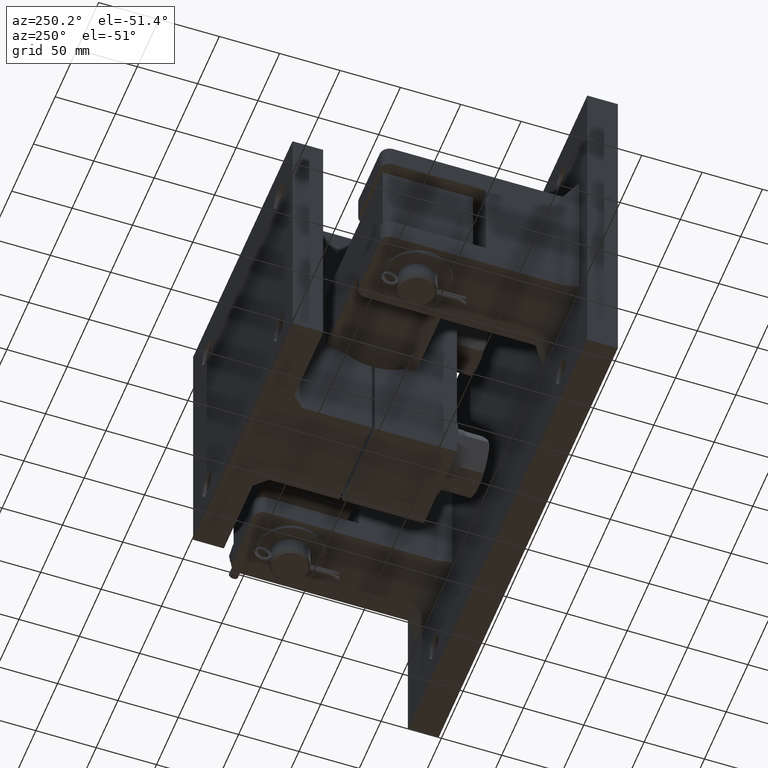
[diagram: clean part render]
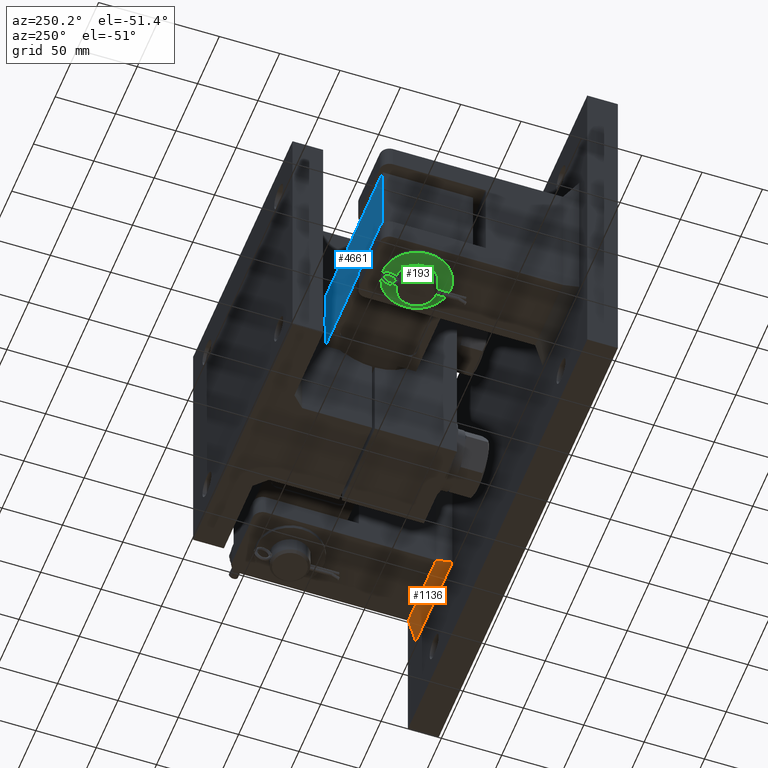
[diagram: same view with three faces highlighted in distinct colors, each labeled with its STEP entity id]
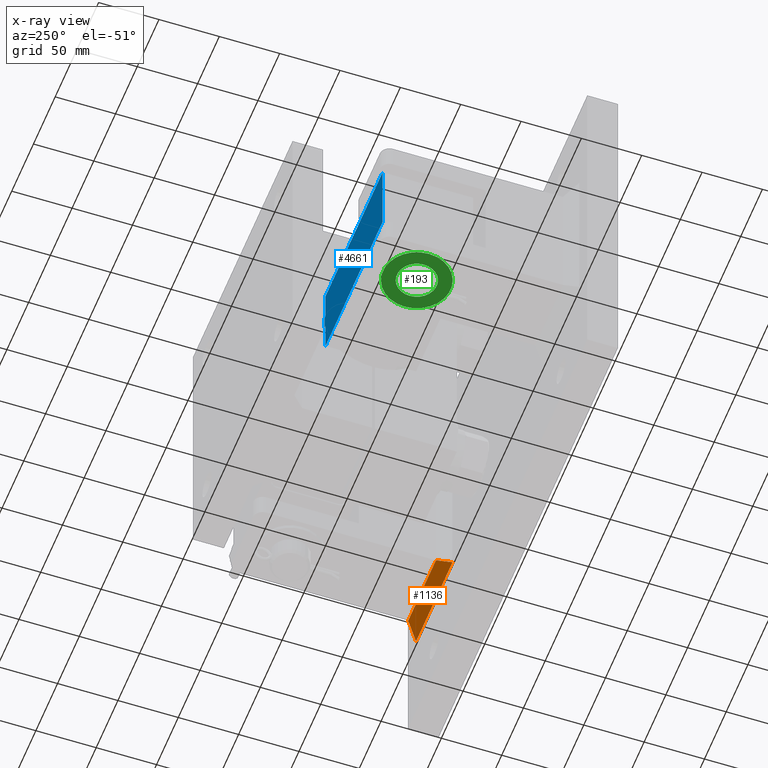
[diagram: x-ray of the same camera — body ghosted, the three highlighted faces saturated]
A machine part, auxiliary view with three faces highlighted in distinct colors.
The next image is the same camera in x-ray (body ghosted, the three faces saturated) — at least one of them is partly hidden behind the body in this view.
Their STEP definitions:

[orange] entity #1136 — the highlighted planar face has unit normal (-0, -0.7071, 0.7071).
#586 = VECTOR ( 'NONE', #9690, 1000.000000000000114 ) ;
#943 = DIRECTION ( 'NONE',  ( -1.000000000000000000, 0.000000000000000000, 0.000000000000000000 ) ) ;
#962 = DIRECTION ( 'NONE',  ( 1.000000000000000000, -0.000000000000000000, 0.000000000000000000 ) ) ;
#1023 = FACE_OUTER_BOUND ( 'NONE', #6649, .T. ) ;
#1136 = ADVANCED_FACE ( 'NONE', ( #1023 ), #4492, .F. ) ;
#1149 = VECTOR ( 'NONE', #943, 1000.000000000000000 ) ;
#1291 = ORIENTED_EDGE ( 'NONE', *, *, #8387, .T. ) ;
#1780 = LINE ( 'NONE', #8620, #1149 ) ;
#1800 = VERTEX_POINT ( 'NONE', #7206 ) ;
#2454 = CARTESIAN_POINT ( 'NONE',  ( 176.4666666666660717, 97.86666666666687320, 7.466666666666093910 ) ) ;
#2718 = CARTESIAN_POINT ( 'NONE',  ( 103.9999999999999432, 25.39999999999999858, -65.00000000000000000 ) ) ;
#2730 = CARTESIAN_POINT ( 'NONE',  ( 141.3333333333335986, 72.06666666666689025, -18.33333333333360926 ) ) ;
#3707 = VERTEX_POINT ( 'NONE', #3811 ) ;
#3811 = CARTESIAN_POINT ( 'NONE',  ( 113.9999999999999432, 35.40000000000011227, -55.00000000000000000 ) ) ;
#4492 = PLANE ( 'NONE',  #4712 ) ;
#4527 = VECTOR ( 'NONE', #5815, 1000.000000000000114 ) ;
#4712 = AXIS2_PLACEMENT_3D ( 'NONE', #8636, #6171, #962 ) ;
#4718 = ORIENTED_EDGE ( 'NONE', *, *, #7095, .F. ) ;
#5196 = EDGE_CURVE ( 'NONE', #1800, #3707, #1780, .T. ) ;
#5379 = VERTEX_POINT ( 'NONE', #8955 ) ;
#5703 = VERTEX_POINT ( 'NONE', #2718 ) ;
#5815 = DIRECTION ( 'NONE',  ( 0.5773502691896239547, 0.5773502691896299499, 0.5773502691896235106 ) ) ;
#6171 = DIRECTION ( 'NONE',  ( -0.000000000000000000, -0.7071067811865435759, 0.7071067811865514585 ) ) ;
#6255 = LINE ( 'NONE', #2730, #586 ) ;
#6649 = EDGE_LOOP ( 'NONE', ( #6974, #10601, #1291, #4718 ) ) ;
#6974 = ORIENTED_EDGE ( 'NONE', *, *, #10346, .T. ) ;
#7095 = EDGE_CURVE ( 'NONE', #5703, #5379, #8026, .T. ) ;
#7206 = CARTESIAN_POINT ( 'NONE',  ( 178.0000000000000000, 35.40000000000011937, -55.00000000000000000 ) ) ;
#8026 = LINE ( 'NONE', #9829, #10723 ) ;
#8387 = EDGE_CURVE ( 'NONE', #1800, #5379, #6255, .T. ) ;
#8620 = CARTESIAN_POINT ( 'NONE',  ( 0.000000000000000000, 35.40000000000011227, -55.00000000000000000 ) ) ;
#8636 = CARTESIAN_POINT ( 'NONE',  ( 0.000000000000000000, 25.39999999999999858, -65.00000000000000000 ) ) ;
#8955 = CARTESIAN_POINT ( 'NONE',  ( 188.0000000000000000, 25.39999999999999858, -65.00000000000000000 ) ) ;
#9410 = LINE ( 'NONE', #2454, #4527 ) ;
#9690 = DIRECTION ( 'NONE',  ( 0.5773502691896239547, -0.5773502691896299499, -0.5773502691896235106 ) ) ;
#9829 = CARTESIAN_POINT ( 'NONE',  ( 0.000000000000000000, 25.39999999999999858, -65.00000000000000000 ) ) ;
#10346 = EDGE_CURVE ( 'NONE', #5703, #3707, #9410, .T. ) ;
#10601 = ORIENTED_EDGE ( 'NONE', *, *, #5196, .F. ) ;
#10610 = DIRECTION ( 'NONE',  ( 1.000000000000000000, 0.000000000000000000, 0.000000000000000000 ) ) ;
#10723 = VECTOR ( 'NONE', #10610, 1000.000000000000000 ) ;

[blue] entity #4661 — the highlighted planar face has unit normal (0, -1, 0).
#51 = DIRECTION ( 'NONE',  ( -0.000000000000000000, -0.000000000000000000, -1.000000000000000000 ) ) ;
#357 = DIRECTION ( 'NONE',  ( -1.000000000000000000, -0.000000000000000000, -0.000000000000000000 ) ) ;
#397 = DIRECTION ( 'NONE',  ( -1.000000000000000000, 0.000000000000000000, 0.000000000000000000 ) ) ;
#452 = EDGE_CURVE ( 'NONE', #1983, #6593, #3695, .T. ) ;
#956 = VECTOR ( 'NONE', #1215, 1000.000000000000000 ) ;
#968 = VERTEX_POINT ( 'NONE', #6805 ) ;
#995 = PLANE ( 'NONE',  #1324 ) ;
#1077 = EDGE_CURVE ( 'NONE', #10046, #6593, #6901, .T. ) ;
#1215 = DIRECTION ( 'NONE',  ( -0.000000000000000000, 0.000000000000000000, 1.000000000000000000 ) ) ;
#1226 = CARTESIAN_POINT ( 'NONE',  ( -171.5000000000000000, 182.4000000000000341, 31.00000000000000000 ) ) ;
#1324 = AXIS2_PLACEMENT_3D ( 'NONE', #10423, #9728, #7304 ) ;
#1619 = DIRECTION ( 'NONE',  ( -0.000000000000000000, 0.000000000000000000, 1.000000000000000000 ) ) ;
#1681 = CARTESIAN_POINT ( 'NONE',  ( -40.00000000000000711, 182.4000000000000341, 31.00000000000000000 ) ) ;
#1983 = VERTEX_POINT ( 'NONE', #8547 ) ;
#2112 = LINE ( 'NONE', #8899, #956 ) ;
#2135 = EDGE_CURVE ( 'NONE', #4325, #7540, #3662, .T. ) ;
#2284 = CARTESIAN_POINT ( 'NONE',  ( -38.10000000000000142, 182.4000000000000341, 6.144102863722221031 ) ) ;
#2551 = ORIENTED_EDGE ( 'NONE', *, *, #7204, .F. ) ;
#3103 = EDGE_LOOP ( 'NONE', ( #4385, #3775, #8951, #3501, #6114, #9982, #2551, #8795 ) ) ;
#3122 = VECTOR ( 'NONE', #397, 1000.000000000000000 ) ;
#3180 = CARTESIAN_POINT ( 'NONE',  ( -171.5000000000000000, 182.4000000000000341, -31.00000000000000000 ) ) ;
#3501 = ORIENTED_EDGE ( 'NONE', *, *, #452, .T. ) ;
#3662 = LINE ( 'NONE', #8091, #3122 ) ;
#3695 = LINE ( 'NONE', #9646, #9720 ) ;
#3775 = ORIENTED_EDGE ( 'NONE', *, *, #2135, .T. ) ;
#3983 = VECTOR ( 'NONE', #11114, 1000.000000000000000 ) ;
#4262 = LINE ( 'NONE', #7671, #3983 ) ;
#4325 = VERTEX_POINT ( 'NONE', #7272 ) ;
#4385 = ORIENTED_EDGE ( 'NONE', *, *, #8468, .F. ) ;
#4528 = VECTOR ( 'NONE', #51, 1000.000000000000000 ) ;
#4628 = LINE ( 'NONE', #8052, #6537 ) ;
#4661 = ADVANCED_FACE ( 'NONE', ( #10748 ), #995, .F. ) ;
#5060 = EDGE_CURVE ( 'NONE', #1983, #7540, #9483, .T. ) ;
#6114 = ORIENTED_EDGE ( 'NONE', *, *, #1077, .F. ) ;
#6201 = DIRECTION ( 'NONE',  ( -0.000000000000000000, 0.000000000000000000, 1.000000000000000000 ) ) ;
#6537 = VECTOR ( 'NONE', #357, 1000.000000000000000 ) ;
#6593 = VERTEX_POINT ( 'NONE', #3180 ) ;
#6805 = CARTESIAN_POINT ( 'NONE',  ( -40.00000000000000000, 182.4000000000000341, 31.00000000000000000 ) ) ;
#6901 = LINE ( 'NONE', #9434, #4528 ) ;
#7204 = EDGE_CURVE ( 'NONE', #10047, #968, #7889, .T. ) ;
#7272 = CARTESIAN_POINT ( 'NONE',  ( -38.10000000000000142, 182.4000000000000341, -6.144102863722221031 ) ) ;
#7296 = VECTOR ( 'NONE', #6201, 1000.000000000000000 ) ;
#7304 = DIRECTION ( 'NONE',  ( 0.000000000000000000, -0.000000000000000000, -1.000000000000000000 ) ) ;
#7540 = VERTEX_POINT ( 'NONE', #9496 ) ;
#7671 = CARTESIAN_POINT ( 'NONE',  ( -40.00000000000000000, 182.4000000000000341, 6.144102863722221031 ) ) ;
#7889 = LINE ( 'NONE', #10593, #7296 ) ;
#8052 = CARTESIAN_POINT ( 'NONE',  ( -171.5000000000000000, 182.4000000000000341, 31.00000000000000000 ) ) ;
#8091 = CARTESIAN_POINT ( 'NONE',  ( -40.00000000000000000, 182.4000000000000341, -6.144102863722221031 ) ) ;
#8468 = EDGE_CURVE ( 'NONE', #4325, #10932, #2112, .T. ) ;
#8547 = CARTESIAN_POINT ( 'NONE',  ( -40.00000000000000000, 182.4000000000000341, -31.00000000000000355 ) ) ;
#8795 = ORIENTED_EDGE ( 'NONE', *, *, #9924, .T. ) ;
#8899 = CARTESIAN_POINT ( 'NONE',  ( -38.09999999999999432, 182.4000000000000341, 31.00000000000000000 ) ) ;
#8951 = ORIENTED_EDGE ( 'NONE', *, *, #5060, .F. ) ;
#9212 = VECTOR ( 'NONE', #1619, 1000.000000000000000 ) ;
#9386 = EDGE_CURVE ( 'NONE', #968, #10046, #4628, .T. ) ;
#9434 = CARTESIAN_POINT ( 'NONE',  ( -171.5000000000000000, 182.4000000000000341, 31.00000000000000000 ) ) ;
#9483 = LINE ( 'NONE', #1681, #9212 ) ;
#9496 = CARTESIAN_POINT ( 'NONE',  ( -40.00000000000000000, 182.4000000000000341, -6.144102863722221031 ) ) ;
#9646 = CARTESIAN_POINT ( 'NONE',  ( -171.5000000000000000, 182.4000000000000341, -31.00000000000000000 ) ) ;
#9720 = VECTOR ( 'NONE', #9876, 1000.000000000000000 ) ;
#9728 = DIRECTION ( 'NONE',  ( 0.000000000000000000, -1.000000000000000000, 0.000000000000000000 ) ) ;
#9767 = CARTESIAN_POINT ( 'NONE',  ( -40.00000000000000000, 182.4000000000000341, 6.144102863722221031 ) ) ;
#9876 = DIRECTION ( 'NONE',  ( -1.000000000000000000, -0.000000000000000000, -0.000000000000000000 ) ) ;
#9924 = EDGE_CURVE ( 'NONE', #10047, #10932, #4262, .T. ) ;
#9982 = ORIENTED_EDGE ( 'NONE', *, *, #9386, .F. ) ;
#10046 = VERTEX_POINT ( 'NONE', #1226 ) ;
#10047 = VERTEX_POINT ( 'NONE', #9767 ) ;
#10423 = CARTESIAN_POINT ( 'NONE',  ( -171.5000000000000000, 182.4000000000000341, 31.00000000000000000 ) ) ;
#10593 = CARTESIAN_POINT ( 'NONE',  ( -40.00000000000000711, 182.4000000000000341, 31.00000000000000000 ) ) ;
#10748 = FACE_OUTER_BOUND ( 'NONE', #3103, .T. ) ;
#10932 = VERTEX_POINT ( 'NONE', #2284 ) ;
#11114 = DIRECTION ( 'NONE',  ( 1.000000000000000000, -0.000000000000000000, -0.000000000000000000 ) ) ;

[green] entity #193 — the highlighted planar face has unit normal (0, 0, -1).
#12 = VERTEX_POINT ( 'NONE', #1129 ) ;
#134 = EDGE_CURVE ( 'NONE', #4402, #7804, #8090, .T. ) ;
#193 = ADVANCED_FACE ( 'NONE', ( #2248, #8366 ), #4933, .T. ) ;
#587 = CIRCLE ( 'NONE', #2921, 16.49999999999998579 ) ;
#674 = DIRECTION ( 'NONE',  ( 0.000000000000000000, 0.000000000000000000, -1.000000000000000000 ) ) ;
#729 = CARTESIAN_POINT ( 'NONE',  ( -118.0000000000000000, 144.9000000000000057, -58.00000000000000000 ) ) ;
#852 = ORIENTED_EDGE ( 'NONE', *, *, #1177, .T. ) ;
#865 = EDGE_LOOP ( 'NONE', ( #7248, #6140 ) ) ;
#1102 = EDGE_CURVE ( 'NONE', #3299, #12, #587, .T. ) ;
#1129 = CARTESIAN_POINT ( 'NONE',  ( -162.4999999999999716, 144.9000000000000057, -58.00000000000000000 ) ) ;
#1177 = EDGE_CURVE ( 'NONE', #7804, #4402, #7032, .T. ) ;
#1403 = CARTESIAN_POINT ( 'NONE',  ( -146.0000000000000000, 144.9000000000000057, -58.00000000000000000 ) ) ;
#1962 = DIRECTION ( 'NONE',  ( -1.000000000000000000, 0.000000000000000000, 0.000000000000000000 ) ) ;
#2186 = DIRECTION ( 'NONE',  ( 0.000000000000000000, 0.000000000000000000, -1.000000000000000000 ) ) ;
#2198 = CARTESIAN_POINT ( 'NONE',  ( -129.5000000000000000, 144.9000000000000057, -58.00000000000000000 ) ) ;
#2248 = FACE_OUTER_BOUND ( 'NONE', #6293, .T. ) ;
#2563 = AXIS2_PLACEMENT_3D ( 'NONE', #10504, #2186, #3756 ) ;
#2921 = AXIS2_PLACEMENT_3D ( 'NONE', #10342, #3426, #6842 ) ;
#3299 = VERTEX_POINT ( 'NONE', #2198 ) ;
#3426 = DIRECTION ( 'NONE',  ( 0.000000000000000000, 0.000000000000000000, -1.000000000000000000 ) ) ;
#3591 = CARTESIAN_POINT ( 'NONE',  ( -146.0000000000000000, 144.9000000000000057, -58.00000000000000000 ) ) ;
#3756 = DIRECTION ( 'NONE',  ( -1.000000000000000000, 0.000000000000000000, 0.000000000000000000 ) ) ;
#3909 = CARTESIAN_POINT ( 'NONE',  ( -174.0000000000000000, 144.9000000000000057, -58.00000000000000000 ) ) ;
#4093 = DIRECTION ( 'NONE',  ( -1.000000000000000000, 0.000000000000000000, -0.000000000000000000 ) ) ;
#4402 = VERTEX_POINT ( 'NONE', #3909 ) ;
#4601 = AXIS2_PLACEMENT_3D ( 'NONE', #3591, #7972, #1962 ) ;
#4933 = PLANE ( 'NONE',  #7534 ) ;
#4988 = CARTESIAN_POINT ( 'NONE',  ( -146.0000000000000000, 144.9000000000000057, -58.00000000000000000 ) ) ;
#6140 = ORIENTED_EDGE ( 'NONE', *, *, #6972, .F. ) ;
#6293 = EDGE_LOOP ( 'NONE', ( #852, #8038 ) ) ;
#6669 = DIRECTION ( 'NONE',  ( 0.000000000000000000, 0.000000000000000000, -1.000000000000000000 ) ) ;
#6842 = DIRECTION ( 'NONE',  ( -1.000000000000000000, 0.000000000000000000, 0.000000000000000000 ) ) ;
#6972 = EDGE_CURVE ( 'NONE', #12, #3299, #9441, .T. ) ;
#7032 = CIRCLE ( 'NONE', #2563, 27.99999999999999645 ) ;
#7248 = ORIENTED_EDGE ( 'NONE', *, *, #1102, .F. ) ;
#7534 = AXIS2_PLACEMENT_3D ( 'NONE', #4988, #674, #4093 ) ;
#7804 = VERTEX_POINT ( 'NONE', #729 ) ;
#7972 = DIRECTION ( 'NONE',  ( 0.000000000000000000, 0.000000000000000000, -1.000000000000000000 ) ) ;
#8038 = ORIENTED_EDGE ( 'NONE', *, *, #134, .T. ) ;
#8090 = CIRCLE ( 'NONE', #10429, 27.99999999999999645 ) ;
#8366 = FACE_BOUND ( 'NONE', #865, .T. ) ;
#9441 = CIRCLE ( 'NONE', #4601, 16.49999999999998579 ) ;
#10108 = DIRECTION ( 'NONE',  ( -1.000000000000000000, 0.000000000000000000, 0.000000000000000000 ) ) ;
#10342 = CARTESIAN_POINT ( 'NONE',  ( -146.0000000000000000, 144.9000000000000057, -58.00000000000000000 ) ) ;
#10429 = AXIS2_PLACEMENT_3D ( 'NONE', #1403, #6669, #10108 ) ;
#10504 = CARTESIAN_POINT ( 'NONE',  ( -146.0000000000000000, 144.9000000000000057, -58.00000000000000000 ) ) ;